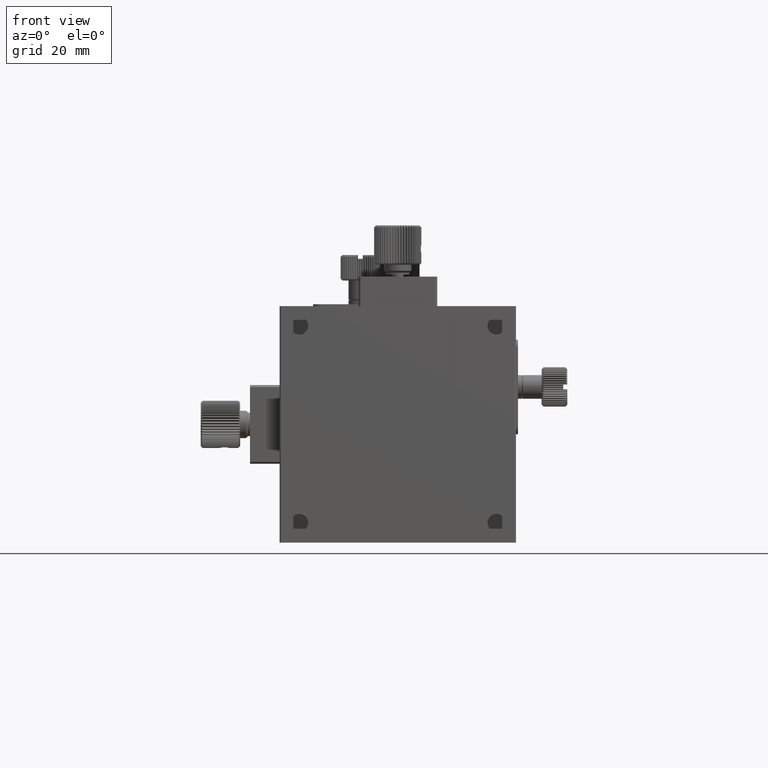
[diagram: clean part render]
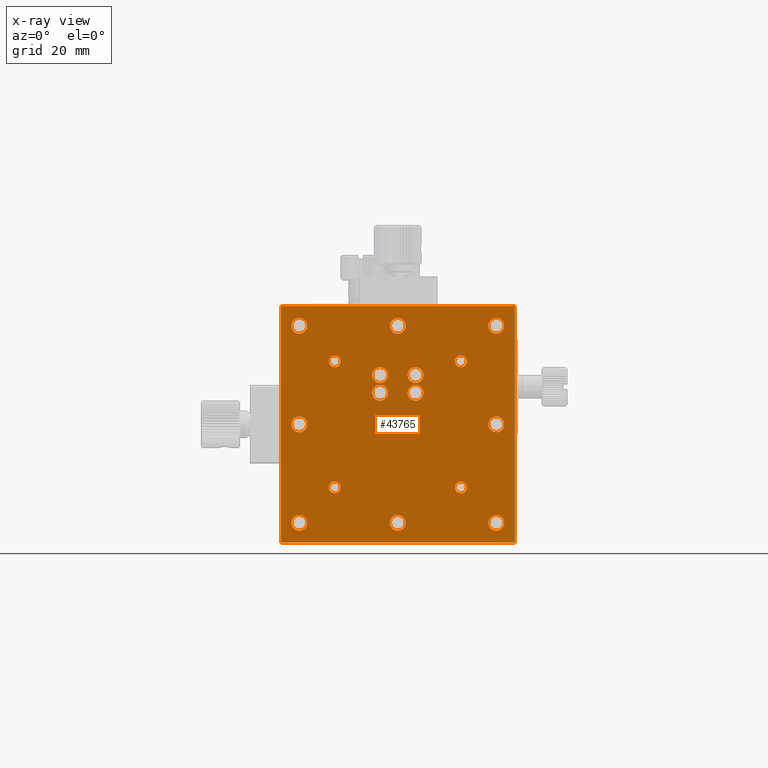
[diagram: x-ray — body ghosted, one internal face saturated and labeled with its STEP entity id]
A machine part, front view, then the same camera in x-ray: the body is ghosted and one INTERNAL B-rep face — a face not visible from any outside direction — is saturated and labeled: STEP entity #43765.
In plain terms, the highlighted planar face has unit normal (0, -1, 0).
Its self-contained STEP definition (entity closure, byte-faithful):
#31 = FACE_BOUND ( 'NONE', #25517, .T. ) ;
#634 = PLANE ( 'NONE',  #21208 ) ;
#1000 = EDGE_LOOP ( 'NONE', ( #52424 ) ) ;
#1210 = ORIENTED_EDGE ( 'NONE', *, *, #22223, .F. ) ;
#1564 = VERTEX_POINT ( 'NONE', #39161 ) ;
#1781 = VERTEX_POINT ( 'NONE', #11372 ) ;
#1947 = DIRECTION ( 'NONE',  ( 1.000000000000000000, 0.000000000000000000, 0.000000000000000000 ) ) ;
#1960 = DIRECTION ( 'NONE',  ( 1.000000000000000000, 0.000000000000000000, 0.000000000000000000 ) ) ;
#2793 = CARTESIAN_POINT ( 'NONE',  ( 25.49999999999999645, -17.00000000000000000, -22.00000000000000000 ) ) ;
#2878 = CARTESIAN_POINT ( 'NONE',  ( 30.00000000000000000, -17.00000000005684342, -55.00000000000000000 ) ) ;
#3142 = CARTESIAN_POINT ( 'NONE',  ( 4.999999999999997335, -17.00000000005684342, -5.000000000000000000 ) ) ;
#3450 = ORIENTED_EDGE ( 'NONE', *, *, #45833, .F. ) ;
#3804 = CARTESIAN_POINT ( 'NONE',  ( 23.49999999999999289, -17.00000000000000000, -22.00000000000000000 ) ) ;
#4770 = CARTESIAN_POINT ( 'NONE',  ( 0.2999999999999947153, -17.00000000000001421, 0.000000000000000000 ) ) ;
#5102 = FACE_BOUND ( 'NONE', #7994, .T. ) ;
#5170 = DIRECTION ( 'NONE',  ( 0.000000000000000000, 1.000000000000000000, 0.000000000000000000 ) ) ;
#6089 = CARTESIAN_POINT ( 'NONE',  ( 54.99999999999998579, -17.00000000000000000, -55.00000000000000000 ) ) ;
#6239 = ORIENTED_EDGE ( 'NONE', *, *, #32057, .F. ) ;
#7775 = AXIS2_PLACEMENT_3D ( 'NONE', #56646, #32511, #29284 ) ;
#7870 = EDGE_CURVE ( 'NONE', #58463, #58463, #36737, .T. ) ;
#7994 = EDGE_LOOP ( 'NONE', ( #12260 ) ) ;
#8139 = AXIS2_PLACEMENT_3D ( 'NONE', #46829, #51577, #41722 ) ;
#8259 = EDGE_LOOP ( 'NONE', ( #27981 ) ) ;
#8321 = CIRCLE ( 'NONE', #60209, 1.999999999979990006 ) ;
#9253 = DIRECTION ( 'NONE',  ( -0.000000000000000000, -0.000000000000000000, 1.000000000000000000 ) ) ;
#9554 = LINE ( 'NONE', #32847, #36396 ) ;
#9870 = FACE_BOUND ( 'NONE', #61821, .T. ) ;
#10208 = FACE_OUTER_BOUND ( 'NONE', #61339, .T. ) ;
#10231 = EDGE_LOOP ( 'NONE', ( #51029 ) ) ;
#10414 = CARTESIAN_POINT ( 'NONE',  ( 0.2999999999999947153, -17.00000000000000711, 0.000000000000000000 ) ) ;
#10596 = CARTESIAN_POINT ( 'NONE',  ( 0.2999999999999947153, -17.00000000000000711, -60.00000000000000000 ) ) ;
#10984 = DIRECTION ( 'NONE',  ( 1.000000000000000000, 0.000000000000000000, 0.000000000000000000 ) ) ;
#11372 = CARTESIAN_POINT ( 'NONE',  ( 56.99999999995725375, -17.00000000000000000, -30.00000000000000000 ) ) ;
#11455 = DIRECTION ( 'NONE',  ( 1.000000000000000000, 0.000000000000000000, 0.000000000000000000 ) ) ;
#11743 = ORIENTED_EDGE ( 'NONE', *, *, #29985, .F. ) ;
#12260 = ORIENTED_EDGE ( 'NONE', *, *, #61964, .F. ) ;
#12491 = VERTEX_POINT ( 'NONE', #4770 ) ;
#12688 = DIRECTION ( 'NONE',  ( -0.000000000000000000, 1.000000000000000000, -0.000000000000000000 ) ) ;
#13365 = DIRECTION ( 'NONE',  ( 0.000000000000000000, 1.000000000000000000, 0.000000000000000000 ) ) ;
#13877 = VECTOR ( 'NONE', #29821, 1000.000000000000000 ) ;
#14050 = VERTEX_POINT ( 'NONE', #18802 ) ;
#14221 = AXIS2_PLACEMENT_3D ( 'NONE', #31384, #56457, #17674 ) ;
#14370 = VERTEX_POINT ( 'NONE', #3804 ) ;
#14610 = CIRCLE ( 'NONE', #55233, 1.499999999972259523 ) ;
#14685 = FACE_BOUND ( 'NONE', #47951, .T. ) ;
#15060 = VERTEX_POINT ( 'NONE', #29688 ) ;
#15519 = CARTESIAN_POINT ( 'NONE',  ( 7.000000000002726708, -17.00000000005684342, -30.00000000000000000 ) ) ;
#15618 = FACE_BOUND ( 'NONE', #38175, .T. ) ;
#15923 = AXIS2_PLACEMENT_3D ( 'NONE', #2793, #12688, #61080 ) ;
#16127 = AXIS2_PLACEMENT_3D ( 'NONE', #49749, #5170, #24286 ) ;
#16935 = CARTESIAN_POINT ( 'NONE',  ( 31.99999999997998756, -17.00000000005684342, -5.000000000000000000 ) ) ;
#17089 = CIRCLE ( 'NONE', #31295, 2.000000000002728928 ) ;
#17250 = EDGE_LOOP ( 'NONE', ( #32577 ) ) ;
#17258 = VERTEX_POINT ( 'NONE', #41096 ) ;
#17437 = DIRECTION ( 'NONE',  ( 0.000000000000000000, 1.000000000000000000, 0.000000000000000000 ) ) ;
#17674 = DIRECTION ( 'NONE',  ( 1.000000000000000000, 0.000000000000000000, 0.000000000000000000 ) ) ;
#17676 = VERTEX_POINT ( 'NONE', #21953 ) ;
#18285 = FACE_BOUND ( 'NONE', #34415, .T. ) ;
#18572 = VERTEX_POINT ( 'NONE', #52918 ) ;
#18802 = CARTESIAN_POINT ( 'NONE',  ( 7.000000000002726708, -17.00000000005684342, -55.00000000000000000 ) ) ;
#19128 = DIRECTION ( 'NONE',  ( 1.000000000000000000, 0.000000000000000000, 0.000000000000000000 ) ) ;
#19806 = EDGE_CURVE ( 'NONE', #12491, #30601, #34802, .T. ) ;
#19894 = VERTEX_POINT ( 'NONE', #59655 ) ;
#20081 = CARTESIAN_POINT ( 'NONE',  ( 0.2999999999999947153, -17.00000000000000711, -60.00000000000000000 ) ) ;
#20277 = CIRCLE ( 'NONE', #55796, 1.499999999954523933 ) ;
#21208 = AXIS2_PLACEMENT_3D ( 'NONE', #20081, #39491, #58892 ) ;
#21248 = DIRECTION ( 'NONE',  ( 1.000000000000000000, 0.000000000000000000, 0.000000000000000000 ) ) ;
#21953 = CARTESIAN_POINT ( 'NONE',  ( 59.69999999999997442, -17.00000000000000355, 0.000000000000000000 ) ) ;
#22223 = EDGE_CURVE ( 'NONE', #51067, #51067, #61702, .T. ) ;
#22524 = ORIENTED_EDGE ( 'NONE', *, *, #59814, .F. ) ;
#22574 = DIRECTION ( 'NONE',  ( 1.000000000000000000, 0.000000000000000000, 0.000000000000000000 ) ) ;
#23011 = CIRCLE ( 'NONE', #58632, 1.999999999979990006 ) ;
#24097 = VERTEX_POINT ( 'NONE', #57515 ) ;
#24197 = CARTESIAN_POINT ( 'NONE',  ( 4.999999999999997335, -17.00000000005684342, -30.00000000000000000 ) ) ;
#24207 = FACE_BOUND ( 'NONE', #52962, .T. ) ;
#24286 = DIRECTION ( 'NONE',  ( 1.000000000000000000, 0.000000000000000000, 0.000000000000000000 ) ) ;
#24504 = ORIENTED_EDGE ( 'NONE', *, *, #19806, .F. ) ;
#24829 = FACE_BOUND ( 'NONE', #27826, .T. ) ;
#25517 = EDGE_LOOP ( 'NONE', ( #1210 ) ) ;
#25674 = VERTEX_POINT ( 'NONE', #15519 ) ;
#26643 = DIRECTION ( 'NONE',  ( 0.000000000000000000, 1.000000000000000000, 0.000000000000000000 ) ) ;
#27826 = EDGE_LOOP ( 'NONE', ( #11743 ) ) ;
#27981 = ORIENTED_EDGE ( 'NONE', *, *, #52359, .F. ) ;
#28134 = FACE_BOUND ( 'NONE', #53716, .T. ) ;
#29284 = DIRECTION ( 'NONE',  ( -1.000000000000000000, 0.000000000000000000, 0.000000000000000000 ) ) ;
#29375 = DIRECTION ( 'NONE',  ( 1.000000000000000000, 1.227396053628219999E-16, 0.000000000000000000 ) ) ;
#29656 = AXIS2_PLACEMENT_3D ( 'NONE', #3142, #13365, #22574 ) ;
#29688 = CARTESIAN_POINT ( 'NONE',  ( 47.49999999995452526, -17.00000000005684342, -46.00000000000000000 ) ) ;
#29821 = DIRECTION ( 'NONE',  ( -1.000000000000000000, -1.227396053628219999E-16, -0.000000000000000000 ) ) ;
#29985 = EDGE_CURVE ( 'NONE', #1564, #1564, #23011, .T. ) ;
#30015 = DIRECTION ( 'NONE',  ( 0.000000000000000000, 0.000000000000000000, -1.000000000000000000 ) ) ;
#30468 = ORIENTED_EDGE ( 'NONE', *, *, #58294, .F. ) ;
#30601 = VERTEX_POINT ( 'NONE', #54238 ) ;
#30728 = EDGE_CURVE ( 'NONE', #24097, #24097, #43456, .T. ) ;
#31295 = AXIS2_PLACEMENT_3D ( 'NONE', #24197, #51910, #19128 ) ;
#31341 = EDGE_CURVE ( 'NONE', #46460, #17676, #9554, .T. ) ;
#31384 = CARTESIAN_POINT ( 'NONE',  ( 46.00000000000000000, -17.00000000005684342, -14.00000000000000000 ) ) ;
#31443 = CIRCLE ( 'NONE', #36495, 1.999999999957265073 ) ;
#32057 = EDGE_CURVE ( 'NONE', #1781, #1781, #31443, .T. ) ;
#32302 = DIRECTION ( 'NONE',  ( -1.000000000000000000, 0.000000000000000000, 0.000000000000000000 ) ) ;
#32511 = DIRECTION ( 'NONE',  ( -0.000000000000000000, 1.000000000000000000, -0.000000000000000000 ) ) ;
#32577 = ORIENTED_EDGE ( 'NONE', *, *, #49606, .F. ) ;
#32847 = CARTESIAN_POINT ( 'NONE',  ( 59.69999999999997442, -17.00000000000000000, -60.00000000000000000 ) ) ;
#34095 = FACE_BOUND ( 'NONE', #44880, .T. ) ;
#34306 = DIRECTION ( 'NONE',  ( 0.000000000000000000, 1.000000000000000000, 0.000000000000000000 ) ) ;
#34317 = CARTESIAN_POINT ( 'NONE',  ( 7.000000000002726708, -17.00000000005684342, -5.000000000000000000 ) ) ;
#34415 = EDGE_LOOP ( 'NONE', ( #43343 ) ) ;
#34802 = LINE ( 'NONE', #10596, #46350 ) ;
#34864 = CARTESIAN_POINT ( 'NONE',  ( 55.00000000000000000, -17.00000000000000000, -5.000000000000000000 ) ) ;
#35186 = EDGE_CURVE ( 'NONE', #25674, #25674, #17089, .T. ) ;
#35350 = AXIS2_PLACEMENT_3D ( 'NONE', #45985, #46283, #32302 ) ;
#36005 = CARTESIAN_POINT ( 'NONE',  ( 46.00000000000000000, -17.00000000005684342, -46.00000000000000000 ) ) ;
#36094 = CARTESIAN_POINT ( 'NONE',  ( 15.49999999997225864, -17.00000000000000000, -14.00000000000000000 ) ) ;
#36255 = CIRCLE ( 'NONE', #15923, 2.000000000000001776 ) ;
#36256 = CARTESIAN_POINT ( 'NONE',  ( 4.999999999999997335, -17.00000000005684342, -55.00000000000000000 ) ) ;
#36396 = VECTOR ( 'NONE', #9253, 1000.000000000000000 ) ;
#36408 = ORIENTED_EDGE ( 'NONE', *, *, #31341, .F. ) ;
#36495 = AXIS2_PLACEMENT_3D ( 'NONE', #41601, #17437, #56207 ) ;
#36737 = CIRCLE ( 'NONE', #29656, 2.000000000002728928 ) ;
#37798 = AXIS2_PLACEMENT_3D ( 'NONE', #6089, #54153, #1960 ) ;
#38175 = EDGE_LOOP ( 'NONE', ( #6239 ) ) ;
#39160 = CIRCLE ( 'NONE', #51346, 1.999999999957251307 ) ;
#39161 = CARTESIAN_POINT ( 'NONE',  ( 31.99999999997998756, -17.00000000005684342, -55.00000000000000000 ) ) ;
#39234 = LINE ( 'NONE', #62804, #48997 ) ;
#39491 = DIRECTION ( 'NONE',  ( 1.227396053628219999E-16, -1.000000000000000000, 0.000000000000000000 ) ) ;
#40065 = CARTESIAN_POINT ( 'NONE',  ( 59.69999999999997442, -17.00000000000000355, -60.00000000000000000 ) ) ;
#41096 = CARTESIAN_POINT ( 'NONE',  ( 23.49999999999999289, -17.00000000000000000, -17.50000000000000000 ) ) ;
#41108 = DIRECTION ( 'NONE',  ( 0.000000000000000000, 1.000000000000000000, 0.000000000000000000 ) ) ;
#41592 = CARTESIAN_POINT ( 'NONE',  ( 30.00000000000000000, -17.00000000005684342, -5.000000000000000000 ) ) ;
#41601 = CARTESIAN_POINT ( 'NONE',  ( 54.99999999999998579, -17.00000000000000000, -30.00000000000000000 ) ) ;
#41722 = DIRECTION ( 'NONE',  ( -1.000000000000000000, 0.000000000000000000, 0.000000000000000000 ) ) ;
#41734 = DIRECTION ( 'NONE',  ( 1.000000000000000000, 0.000000000000000000, 0.000000000000000000 ) ) ;
#42079 = ORIENTED_EDGE ( 'NONE', *, *, #61993, .F. ) ;
#42877 = CIRCLE ( 'NONE', #37798, 1.999999999957265073 ) ;
#42897 = DIRECTION ( 'NONE',  ( 1.000000000000000000, 0.000000000000000000, 0.000000000000000000 ) ) ;
#43343 = ORIENTED_EDGE ( 'NONE', *, *, #7870, .F. ) ;
#43456 = CIRCLE ( 'NONE', #35350, 2.000000000000001776 ) ;
#43765 = ADVANCED_FACE ( 'NONE', ( #10208, #52299, #15618, #54399, #24829, #14685, #28134, #18285, #47553, #24207, #44247, #31, #34095, #9870, #48743, #5102, #43946 ), #634, .F. ) ;
#43946 = FACE_BOUND ( 'NONE', #10231, .T. ) ;
#44247 = FACE_BOUND ( 'NONE', #17250, .T. ) ;
#44880 = EDGE_LOOP ( 'NONE', ( #62530 ) ) ;
#45332 = DIRECTION ( 'NONE',  ( 0.000000000000000000, 1.000000000000000000, 0.000000000000000000 ) ) ;
#45654 = VERTEX_POINT ( 'NONE', #36094 ) ;
#45794 = CIRCLE ( 'NONE', #8139, 2.000000000000001776 ) ;
#45810 = DIRECTION ( 'NONE',  ( 0.000000000000000000, 1.000000000000000000, 0.000000000000000000 ) ) ;
#45815 = CIRCLE ( 'NONE', #14221, 1.499999999954523933 ) ;
#45833 = EDGE_CURVE ( 'NONE', #19894, #19894, #45815, .T. ) ;
#45877 = DIRECTION ( 'NONE',  ( 0.000000000000000000, 1.000000000000000000, 0.000000000000000000 ) ) ;
#45985 = CARTESIAN_POINT ( 'NONE',  ( 34.49999999999999289, -17.00000000000000000, -17.50000000000000000 ) ) ;
#46283 = DIRECTION ( 'NONE',  ( -0.000000000000000000, 1.000000000000000000, -0.000000000000000000 ) ) ;
#46350 = VECTOR ( 'NONE', #30015, 1000.000000000000000 ) ;
#46460 = VERTEX_POINT ( 'NONE', #40065 ) ;
#46501 = CARTESIAN_POINT ( 'NONE',  ( 56.99999999995725375, -17.00000000000000000, -55.00000000000000000 ) ) ;
#46829 = CARTESIAN_POINT ( 'NONE',  ( 25.49999999999999645, -17.00000000000000000, -17.50000000000000000 ) ) ;
#47348 = ORIENTED_EDGE ( 'NONE', *, *, #35186, .F. ) ;
#47553 = FACE_BOUND ( 'NONE', #50789, .T. ) ;
#47850 = VERTEX_POINT ( 'NONE', #54463 ) ;
#47951 = EDGE_LOOP ( 'NONE', ( #42079 ) ) ;
#48635 = CARTESIAN_POINT ( 'NONE',  ( 13.99999999999999822, -17.00000000000000000, -14.00000000000000000 ) ) ;
#48743 = FACE_BOUND ( 'NONE', #52673, .T. ) ;
#48997 = VECTOR ( 'NONE', #29375, 1000.000000000000000 ) ;
#49451 = AXIS2_PLACEMENT_3D ( 'NONE', #36256, #45810, #11455 ) ;
#49606 = EDGE_CURVE ( 'NONE', #45654, #45654, #14610, .T. ) ;
#49749 = CARTESIAN_POINT ( 'NONE',  ( 13.99999999999999822, -17.00000000000000000, -46.00000000000000000 ) ) ;
#50789 = EDGE_LOOP ( 'NONE', ( #22524 ) ) ;
#51029 = ORIENTED_EDGE ( 'NONE', *, *, #54047, .F. ) ;
#51067 = VERTEX_POINT ( 'NONE', #55183 ) ;
#51224 = ORIENTED_EDGE ( 'NONE', *, *, #59354, .F. ) ;
#51346 = AXIS2_PLACEMENT_3D ( 'NONE', #34864, #45332, #10984 ) ;
#51577 = DIRECTION ( 'NONE',  ( -0.000000000000000000, 1.000000000000000000, -0.000000000000000000 ) ) ;
#51578 = VERTEX_POINT ( 'NONE', #16935 ) ;
#51910 = DIRECTION ( 'NONE',  ( 0.000000000000000000, 1.000000000000000000, 0.000000000000000000 ) ) ;
#52299 = FACE_BOUND ( 'NONE', #8259, .T. ) ;
#52359 = EDGE_CURVE ( 'NONE', #18572, #18572, #39160, .T. ) ;
#52424 = ORIENTED_EDGE ( 'NONE', *, *, #59435, .F. ) ;
#52673 = EDGE_LOOP ( 'NONE', ( #30468 ) ) ;
#52918 = CARTESIAN_POINT ( 'NONE',  ( 56.99999999995725375, -17.00000000000000000, -5.000000000000000000 ) ) ;
#52962 = EDGE_LOOP ( 'NONE', ( #3450 ) ) ;
#53513 = EDGE_CURVE ( 'NONE', #17676, #12491, #53988, .T. ) ;
#53716 = EDGE_LOOP ( 'NONE', ( #47348 ) ) ;
#53988 = LINE ( 'NONE', #10414, #13877 ) ;
#54047 = EDGE_CURVE ( 'NONE', #47850, #47850, #59659, .T. ) ;
#54153 = DIRECTION ( 'NONE',  ( 0.000000000000000000, 1.000000000000000000, 0.000000000000000000 ) ) ;
#54238 = CARTESIAN_POINT ( 'NONE',  ( 0.2999999999999947153, -17.00000000000001421, -60.00000000000000000 ) ) ;
#54399 = FACE_BOUND ( 'NONE', #1000, .T. ) ;
#54463 = CARTESIAN_POINT ( 'NONE',  ( 32.49999999999999289, -17.00000000000000000, -22.00000000000000000 ) ) ;
#54508 = CIRCLE ( 'NONE', #49451, 2.000000000002728928 ) ;
#54767 = ORIENTED_EDGE ( 'NONE', *, *, #53513, .F. ) ;
#55183 = CARTESIAN_POINT ( 'NONE',  ( 15.49999999997225864, -17.00000000000000000, -46.00000000000000000 ) ) ;
#55233 = AXIS2_PLACEMENT_3D ( 'NONE', #48635, #34306, #42897 ) ;
#55796 = AXIS2_PLACEMENT_3D ( 'NONE', #36005, #45877, #1947 ) ;
#56207 = DIRECTION ( 'NONE',  ( 1.000000000000000000, 0.000000000000000000, 0.000000000000000000 ) ) ;
#56457 = DIRECTION ( 'NONE',  ( 0.000000000000000000, 1.000000000000000000, 0.000000000000000000 ) ) ;
#56646 = CARTESIAN_POINT ( 'NONE',  ( 34.49999999999999289, -17.00000000000000000, -22.00000000000000000 ) ) ;
#57154 = EDGE_CURVE ( 'NONE', #15060, #15060, #20277, .T. ) ;
#57515 = CARTESIAN_POINT ( 'NONE',  ( 32.49999999999999289, -17.00000000000000000, -17.50000000000000000 ) ) ;
#58294 = EDGE_CURVE ( 'NONE', #17258, #17258, #45794, .T. ) ;
#58463 = VERTEX_POINT ( 'NONE', #34317 ) ;
#58632 = AXIS2_PLACEMENT_3D ( 'NONE', #2878, #41108, #41734 ) ;
#58735 = ORIENTED_EDGE ( 'NONE', *, *, #30728, .F. ) ;
#58892 = DIRECTION ( 'NONE',  ( -1.000000000000000000, -1.227396053628219999E-16, -0.000000000000000000 ) ) ;
#59354 = EDGE_CURVE ( 'NONE', #30601, #46460, #39234, .T. ) ;
#59435 = EDGE_CURVE ( 'NONE', #60513, #60513, #42877, .T. ) ;
#59655 = CARTESIAN_POINT ( 'NONE',  ( 47.49999999995452526, -17.00000000005684342, -14.00000000000000000 ) ) ;
#59659 = CIRCLE ( 'NONE', #7775, 2.000000000000001776 ) ;
#59814 = EDGE_CURVE ( 'NONE', #51578, #51578, #8321, .T. ) ;
#60209 = AXIS2_PLACEMENT_3D ( 'NONE', #41592, #26643, #21248 ) ;
#60513 = VERTEX_POINT ( 'NONE', #46501 ) ;
#61080 = DIRECTION ( 'NONE',  ( -1.000000000000000000, 0.000000000000000000, 0.000000000000000000 ) ) ;
#61339 = EDGE_LOOP ( 'NONE', ( #36408, #51224, #24504, #54767 ) ) ;
#61702 = CIRCLE ( 'NONE', #16127, 1.499999999972259523 ) ;
#61821 = EDGE_LOOP ( 'NONE', ( #58735 ) ) ;
#61964 = EDGE_CURVE ( 'NONE', #14370, #14370, #36255, .T. ) ;
#61993 = EDGE_CURVE ( 'NONE', #14050, #14050, #54508, .T. ) ;
#62530 = ORIENTED_EDGE ( 'NONE', *, *, #57154, .F. ) ;
#62804 = CARTESIAN_POINT ( 'NONE',  ( 0.2999999999999947153, -17.00000000000000711, -60.00000000000000000 ) ) ;